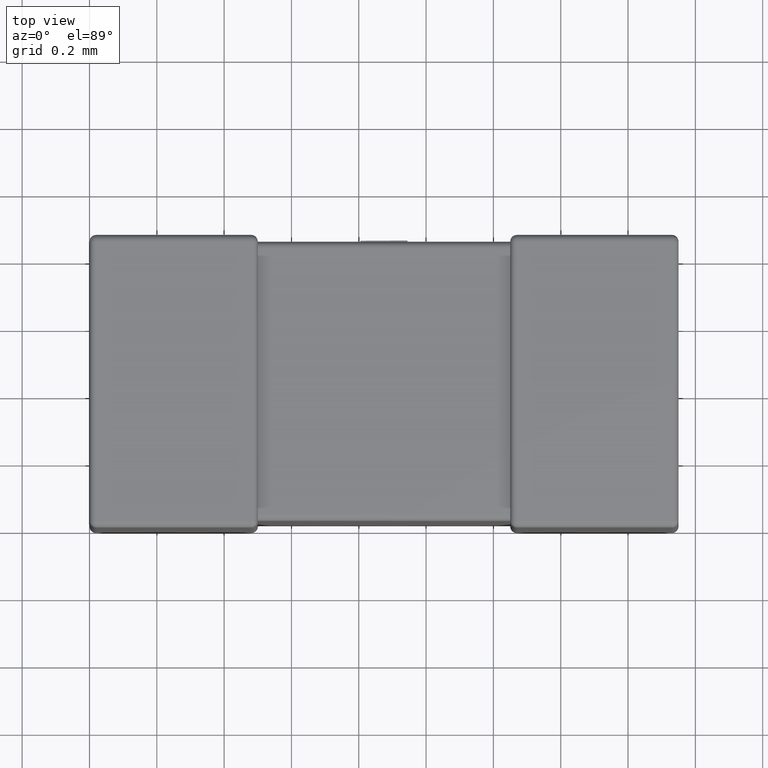
[diagram: clean part render]
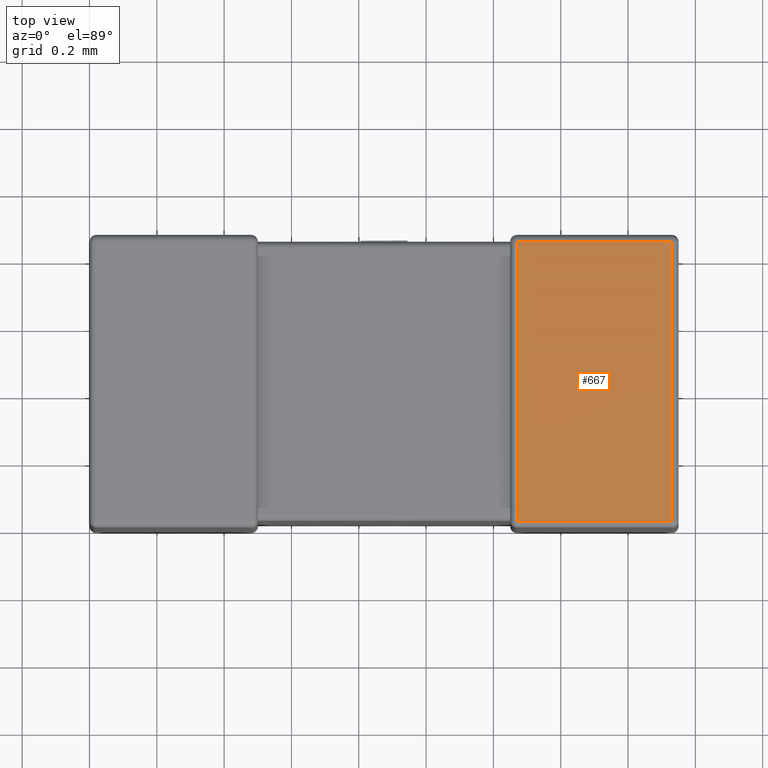
[diagram: same view with one face highlighted and labeled with its STEP entity id]
A machine part, top view. The second image highlights one B-rep face of the part: STEP entity #667.
In plain terms, the highlighted planar face has unit normal (0, 0, -1).
Its self-contained STEP definition (entity closure, byte-faithful):
#113 = LINE ( 'NONE', #3021, #468 ) ;
#373 = DIRECTION ( 'NONE',  ( -0.000000000000000000, -1.000000000000000000, -0.000000000000000000 ) ) ;
#468 = VECTOR ( 'NONE', #3748, 1000.000000000000000 ) ;
#526 = ORIENTED_EDGE ( 'NONE', *, *, #1982, .T. ) ;
#567 = CARTESIAN_POINT ( 'NONE',  ( 1.269760000000000000, 0.8502400000000001068, 0.000000000000000000 ) ) ;
#618 = VERTEX_POINT ( 'NONE', #1514 ) ;
#667 = ADVANCED_FACE ( 'NONE', ( #1233 ), #2275, .F. ) ;
#817 = VECTOR ( 'NONE', #373, 1000.000000000000000 ) ;
#896 = CARTESIAN_POINT ( 'NONE',  ( 1.750000000000000000, 0.8502400000000001068, 0.000000000000000000 ) ) ;
#1058 = VECTOR ( 'NONE', #2355, 1000.000000000000000 ) ;
#1233 = FACE_OUTER_BOUND ( 'NONE', #3779, .T. ) ;
#1436 = CARTESIAN_POINT ( 'NONE',  ( 1.730240000000000000, 0.8502400000000001068, 0.000000000000000000 ) ) ;
#1514 = CARTESIAN_POINT ( 'NONE',  ( 1.269760000000000000, 0.01975999999999999979, 0.000000000000000000 ) ) ;
#1788 = VECTOR ( 'NONE', #4460, 1000.000000000000000 ) ;
#1982 = EDGE_CURVE ( 'NONE', #618, #4429, #4181, .T. ) ;
#2024 = CARTESIAN_POINT ( 'NONE',  ( 1.750000000000000000, 0.01975999999999999979, 0.000000000000000000 ) ) ;
#2275 = PLANE ( 'NONE',  #2505 ) ;
#2355 = DIRECTION ( 'NONE',  ( 1.000000000000000000, -0.000000000000000000, -0.000000000000000000 ) ) ;
#2505 = AXIS2_PLACEMENT_3D ( 'NONE', #3681, #4025, #2615 ) ;
#2603 = EDGE_CURVE ( 'NONE', #3968, #618, #3583, .T. ) ;
#2615 = DIRECTION ( 'NONE',  ( -1.000000000000000000, 0.000000000000000000, -0.000000000000000000 ) ) ;
#2876 = CARTESIAN_POINT ( 'NONE',  ( 1.269760000000000000, 0.000000000000000000, 0.000000000000000000 ) ) ;
#3021 = CARTESIAN_POINT ( 'NONE',  ( 1.730240000000000000, 0.000000000000000000, 0.000000000000000000 ) ) ;
#3061 = ORIENTED_EDGE ( 'NONE', *, *, #3448, .T. ) ;
#3210 = EDGE_CURVE ( 'NONE', #3659, #3968, #4126, .T. ) ;
#3267 = CARTESIAN_POINT ( 'NONE',  ( 1.730240000000000000, 0.01975999999999999979, 0.000000000000000000 ) ) ;
#3448 = EDGE_CURVE ( 'NONE', #4429, #3659, #113, .T. ) ;
#3583 = LINE ( 'NONE', #2876, #817 ) ;
#3659 = VERTEX_POINT ( 'NONE', #1436 ) ;
#3681 = CARTESIAN_POINT ( 'NONE',  ( 1.750000000000000000, 0.000000000000000000, 0.000000000000000000 ) ) ;
#3710 = ORIENTED_EDGE ( 'NONE', *, *, #3210, .T. ) ;
#3748 = DIRECTION ( 'NONE',  ( -0.000000000000000000, 1.000000000000000000, -0.000000000000000000 ) ) ;
#3779 = EDGE_LOOP ( 'NONE', ( #3828, #526, #3061, #3710 ) ) ;
#3828 = ORIENTED_EDGE ( 'NONE', *, *, #2603, .T. ) ;
#3968 = VERTEX_POINT ( 'NONE', #567 ) ;
#4025 = DIRECTION ( 'NONE',  ( 0.000000000000000000, 0.000000000000000000, -1.000000000000000000 ) ) ;
#4126 = LINE ( 'NONE', #896, #1788 ) ;
#4181 = LINE ( 'NONE', #2024, #1058 ) ;
#4429 = VERTEX_POINT ( 'NONE', #3267 ) ;
#4460 = DIRECTION ( 'NONE',  ( -1.000000000000000000, 0.000000000000000000, 0.000000000000000000 ) ) ;